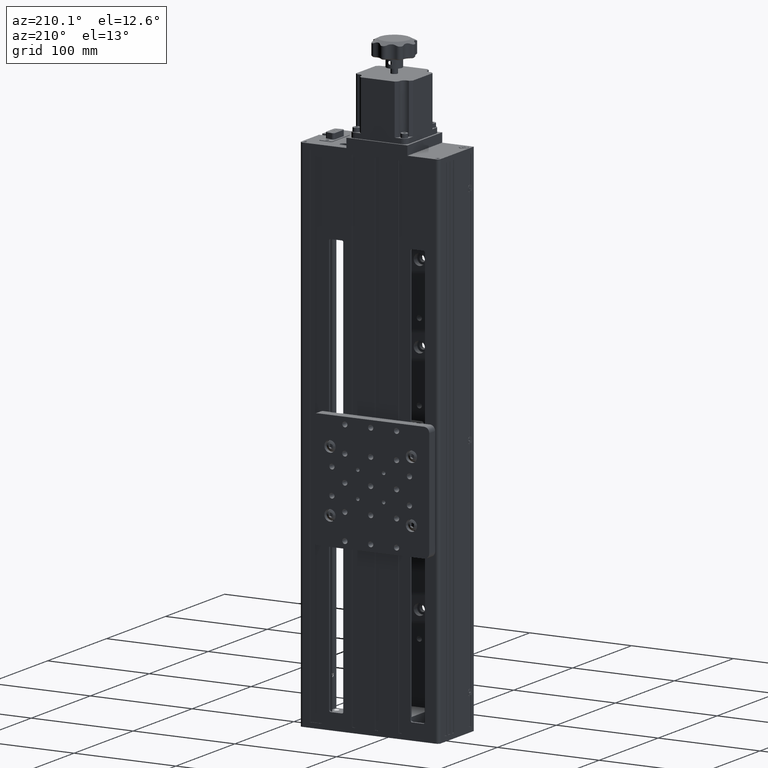
[diagram: clean part render]
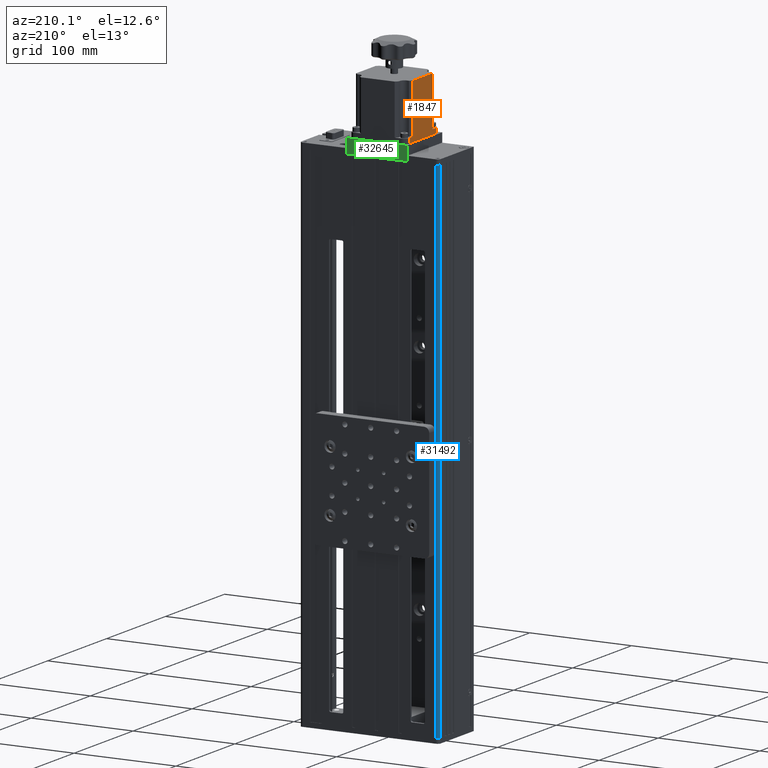
[diagram: same view with three faces highlighted in distinct colors, each labeled with its STEP entity id]
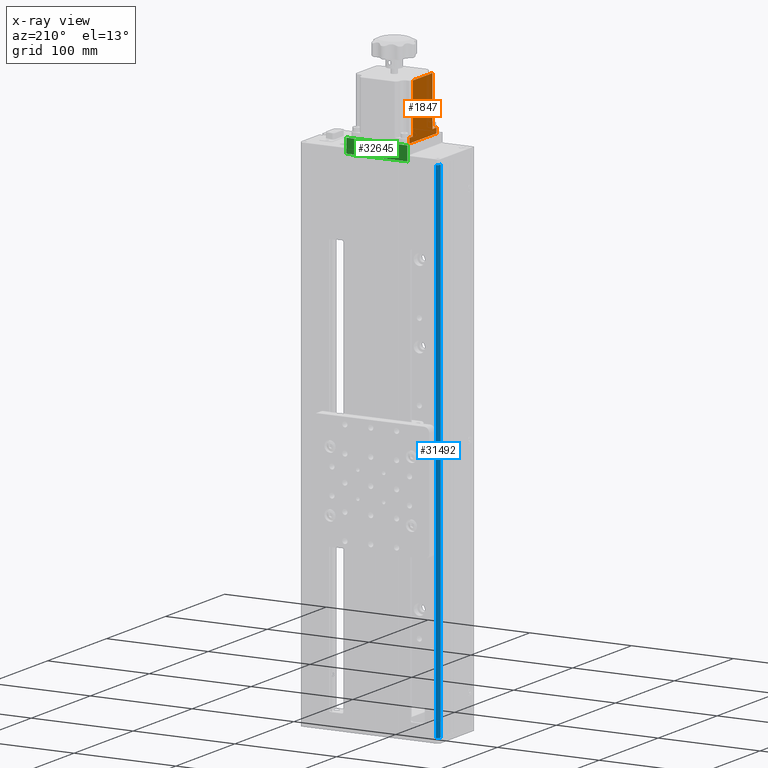
[diagram: x-ray of the same camera — body ghosted, the three highlighted faces saturated]
A machine part, auxiliary view with three faces highlighted in distinct colors.
The next image is the same camera in x-ray (body ghosted, the three faces saturated) — at least one of them is partly hidden behind the body in this view.
Their STEP definitions:

[orange] entity #1847 — the highlighted planar face has unit normal (1, -0, 0).
#254 = LINE ( 'NONE', #18395, #25292 ) ;
#491 = EDGE_CURVE ( 'NONE', #16602, #12348, #31742, .T. ) ;
#1010 = FACE_OUTER_BOUND ( 'NONE', #14990, .T. ) ;
#1242 = VECTOR ( 'NONE', #1416, 1000.000000000000000 ) ;
#1343 = VERTEX_POINT ( 'NONE', #29784 ) ;
#1416 = DIRECTION ( 'NONE',  ( -3.330669073875468600E-016, 1.000000000000000000, 0.0000000000000000000 ) ) ;
#1847 = ADVANCED_FACE ( 'NONE', ( #1010 ), #20207, .F. ) ;
#1956 = DIRECTION ( 'NONE',  ( 0.0000000000000000000, -0.0000000000000000000, -1.000000000000000000 ) ) ;
#3810 = LINE ( 'NONE', #28969, #37469 ) ;
#4369 = ORIENTED_EDGE ( 'NONE', *, *, #26815, .T. ) ;
#6013 = CARTESIAN_POINT ( 'NONE',  ( -38.61080835603996800, 4.012349379352013300, 268.5000000000000000 ) ) ;
#6045 = DIRECTION ( 'NONE',  ( -0.0000000000000000000, 0.0000000000000000000, 1.000000000000000000 ) ) ;
#7367 = VECTOR ( 'NONE', #34994, 1000.000000000000000 ) ;
#10013 = ORIENTED_EDGE ( 'NONE', *, *, #21688, .T. ) ;
#11603 = ORIENTED_EDGE ( 'NONE', *, *, #20942, .T. ) ;
#11646 = EDGE_CURVE ( 'NONE', #12348, #36449, #35927, .T. ) ;
#12348 = VERTEX_POINT ( 'NONE', #21946 ) ;
#12385 = VERTEX_POINT ( 'NONE', #38404 ) ;
#13292 = CARTESIAN_POINT ( 'NONE',  ( -38.61080835603998900, 48.58234937935204600, 268.5000000000000000 ) ) ;
#14990 = EDGE_LOOP ( 'NONE', ( #35791, #15434, #20850, #11603, #4369, #10013, #40715, #31013 ) ) ;
#15434 = ORIENTED_EDGE ( 'NONE', *, *, #30231, .T. ) ;
#15863 = VECTOR ( 'NONE', #23136, 1000.000000000000000 ) ;
#16602 = VERTEX_POINT ( 'NONE', #26169 ) ;
#17068 = CARTESIAN_POINT ( 'NONE',  ( -38.61080835603998900, 48.58234937935204600, 263.5000000000000000 ) ) ;
#17098 = LINE ( 'NONE', #35137, #7367 ) ;
#17704 = VECTOR ( 'NONE', #37075, 1000.000000000000000 ) ;
#18395 = CARTESIAN_POINT ( 'NONE',  ( -38.61080835603998900, 48.58234937935204600, 263.5000000000000000 ) ) ;
#18572 = VERTEX_POINT ( 'NONE', #38781 ) ;
#18872 = CARTESIAN_POINT ( 'NONE',  ( -38.61080835603998900, 37.15234937935203200, 317.3000000000000100 ) ) ;
#19084 = CARTESIAN_POINT ( 'NONE',  ( -38.61080835603996800, -2.417650620648005500, 263.5000000000000000 ) ) ;
#20207 = PLANE ( 'NONE',  #39391 ) ;
#20348 = DIRECTION ( 'NONE',  ( 0.0000000000000000000, 0.0000000000000000000, -1.000000000000000000 ) ) ;
#20850 = ORIENTED_EDGE ( 'NONE', *, *, #21256, .T. ) ;
#20942 = EDGE_CURVE ( 'NONE', #25604, #12385, #34997, .T. ) ;
#21256 = EDGE_CURVE ( 'NONE', #27428, #25604, #3810, .T. ) ;
#21637 = DIRECTION ( 'NONE',  ( -3.330669073875468600E-016, 1.000000000000000000, 0.0000000000000000000 ) ) ;
#21688 = EDGE_CURVE ( 'NONE', #18572, #1343, #31787, .T. ) ;
#21946 = CARTESIAN_POINT ( 'NONE',  ( -38.61080835603996800, -2.417650620648005500, 268.5000000000000000 ) ) ;
#23104 = VECTOR ( 'NONE', #6045, 1000.000000000000000 ) ;
#23136 = DIRECTION ( 'NONE',  ( -3.330669073875468600E-016, 1.000000000000000000, 0.0000000000000000000 ) ) ;
#24173 = VECTOR ( 'NONE', #1956, 1000.000000000000000 ) ;
#24518 = LINE ( 'NONE', #13292, #15863 ) ;
#25292 = VECTOR ( 'NONE', #21637, 1000.000000000000000 ) ;
#25604 = VERTEX_POINT ( 'NONE', #18872 ) ;
#26169 = CARTESIAN_POINT ( 'NONE',  ( -38.61080835603996800, -2.417650620648005500, 263.5000000000000000 ) ) ;
#26815 = EDGE_CURVE ( 'NONE', #12385, #18572, #24518, .T. ) ;
#27428 = VERTEX_POINT ( 'NONE', #29900 ) ;
#28969 = CARTESIAN_POINT ( 'NONE',  ( -38.61080835603998900, 48.58234937935204600, 317.3000000000000100 ) ) ;
#29784 = CARTESIAN_POINT ( 'NONE',  ( -38.61080835603998900, 43.58234937935201700, 263.5000000000000000 ) ) ;
#29900 = CARTESIAN_POINT ( 'NONE',  ( -38.61080835603996800, 4.012349379352013300, 317.3000000000000100 ) ) ;
#30231 = EDGE_CURVE ( 'NONE', #36449, #27428, #17098, .T. ) ;
#30780 = CARTESIAN_POINT ( 'NONE',  ( -38.61080835603998900, 48.58234937935204600, 268.5000000000000000 ) ) ;
#31013 = ORIENTED_EDGE ( 'NONE', *, *, #491, .T. ) ;
#31742 = LINE ( 'NONE', #19084, #23104 ) ;
#31787 = LINE ( 'NONE', #40999, #24173 ) ;
#33790 = CARTESIAN_POINT ( 'NONE',  ( -38.61080835603998900, 37.15234937935203200, 268.5000000000000000 ) ) ;
#34994 = DIRECTION ( 'NONE',  ( -0.0000000000000000000, 0.0000000000000000000, 1.000000000000000000 ) ) ;
#34997 = LINE ( 'NONE', #33790, #17704 ) ;
#35137 = CARTESIAN_POINT ( 'NONE',  ( -38.61080835603996800, 4.012349379352013300, 263.5000000000000000 ) ) ;
#35791 = ORIENTED_EDGE ( 'NONE', *, *, #11646, .T. ) ;
#35802 = EDGE_CURVE ( 'NONE', #16602, #1343, #254, .T. ) ;
#35927 = LINE ( 'NONE', #30780, #1242 ) ;
#36449 = VERTEX_POINT ( 'NONE', #6013 ) ;
#37075 = DIRECTION ( 'NONE',  ( 0.0000000000000000000, 0.0000000000000000000, -1.000000000000000000 ) ) ;
#37469 = VECTOR ( 'NONE', #41888, 1000.000000000000000 ) ;
#38404 = CARTESIAN_POINT ( 'NONE',  ( -38.61080835603998900, 37.15234937935203200, 268.5000000000000000 ) ) ;
#38781 = CARTESIAN_POINT ( 'NONE',  ( -38.61080835603998900, 43.58234937935201700, 268.5000000000000000 ) ) ;
#39391 = AXIS2_PLACEMENT_3D ( 'NONE', #17068, #39831, #20348 ) ;
#39831 = DIRECTION ( 'NONE',  ( 1.000000000000000000, -2.220446049250312600E-016, 0.0000000000000000000 ) ) ;
#40715 = ORIENTED_EDGE ( 'NONE', *, *, #35802, .F. ) ;
#40999 = CARTESIAN_POINT ( 'NONE',  ( -38.61080835603998900, 43.58234937935201700, 263.5000000000000000 ) ) ;
#41888 = DIRECTION ( 'NONE',  ( -3.330669073875468600E-016, 1.000000000000000000, 0.0000000000000000000 ) ) ;

[blue] entity #31492 — the highlighted cylindrical surface (edge-blend (fillet) strip) has radius 3 mm, axis along (-0, -0, -1).
#393 = LINE ( 'NONE', #2433, #33035 ) ;
#797 = VERTEX_POINT ( 'NONE', #1156 ) ;
#1156 = CARTESIAN_POINT ( 'NONE',  ( -68.61080835603992500, 50.08234937935211000, -249.5000000000000000 ) ) ;
#2433 = CARTESIAN_POINT ( 'NONE',  ( -68.61080835603992500, 50.08234937935211000, 249.5000000000000000 ) ) ;
#5698 = DIRECTION ( 'NONE',  ( -0.0000000000000000000, -0.0000000000000000000, -1.000000000000000000 ) ) ;
#6929 = EDGE_CURVE ( 'NONE', #8549, #797, #393, .T. ) ;
#7006 = AXIS2_PLACEMENT_3D ( 'NONE', #30793, #11305, #34079 ) ;
#8422 = ORIENTED_EDGE ( 'NONE', *, *, #17968, .F. ) ;
#8549 = VERTEX_POINT ( 'NONE', #12566 ) ;
#9353 = CARTESIAN_POINT ( 'NONE',  ( -71.61080835603992500, 47.08234937935211000, 249.5000000000000000 ) ) ;
#11305 = DIRECTION ( 'NONE',  ( 0.0000000000000000000, 0.0000000000000000000, 1.000000000000000000 ) ) ;
#12566 = CARTESIAN_POINT ( 'NONE',  ( -68.61080835603992500, 50.08234937935211000, 249.5000000000000000 ) ) ;
#14168 = CIRCLE ( 'NONE', #15311, 3.000000000000002700 ) ;
#14727 = DIRECTION ( 'NONE',  ( -1.000000000000000000, 0.0000000000000000000, 0.0000000000000000000 ) ) ;
#14996 = ORIENTED_EDGE ( 'NONE', *, *, #25374, .T. ) ;
#15121 = AXIS2_PLACEMENT_3D ( 'NONE', #34222, #37345, #14727 ) ;
#15311 = AXIS2_PLACEMENT_3D ( 'NONE', #19269, #41997, #22525 ) ;
#16540 = VERTEX_POINT ( 'NONE', #31995 ) ;
#17968 = EDGE_CURVE ( 'NONE', #41024, #16540, #29042, .T. ) ;
#19269 = CARTESIAN_POINT ( 'NONE',  ( -68.61080835603992500, 47.08234937935211000, 249.5000000000000000 ) ) ;
#22525 = DIRECTION ( 'NONE',  ( 1.000000000000000000, 0.0000000000000000000, 0.0000000000000000000 ) ) ;
#24581 = ORIENTED_EDGE ( 'NONE', *, *, #6929, .T. ) ;
#25374 = EDGE_CURVE ( 'NONE', #797, #16540, #30275, .T. ) ;
#27402 = ORIENTED_EDGE ( 'NONE', *, *, #35294, .F. ) ;
#28664 = CYLINDRICAL_SURFACE ( 'NONE', #15121, 3.000000000000002700 ) ;
#29042 = LINE ( 'NONE', #9353, #36643 ) ;
#30016 = EDGE_LOOP ( 'NONE', ( #14996, #8422, #27402, #24581 ) ) ;
#30275 = CIRCLE ( 'NONE', #7006, 3.000000000000002700 ) ;
#30793 = CARTESIAN_POINT ( 'NONE',  ( -68.61080835603992500, 47.08234937935211000, -249.5000000000000000 ) ) ;
#31492 = ADVANCED_FACE ( 'NONE', ( #41370 ), #28664, .T. ) ;
#31995 = CARTESIAN_POINT ( 'NONE',  ( -71.61080835603992500, 47.08234937935211000, -249.5000000000000000 ) ) ;
#33035 = VECTOR ( 'NONE', #5698, 1000.000000000000000 ) ;
#34079 = DIRECTION ( 'NONE',  ( 1.000000000000000000, 0.0000000000000000000, 0.0000000000000000000 ) ) ;
#34222 = CARTESIAN_POINT ( 'NONE',  ( -68.61080835603992500, 47.08234937935211000, 249.5000000000000000 ) ) ;
#35294 = EDGE_CURVE ( 'NONE', #8549, #41024, #14168, .T. ) ;
#35430 = DIRECTION ( 'NONE',  ( -0.0000000000000000000, -0.0000000000000000000, -1.000000000000000000 ) ) ;
#36643 = VECTOR ( 'NONE', #35430, 1000.000000000000000 ) ;
#37345 = DIRECTION ( 'NONE',  ( -0.0000000000000000000, -0.0000000000000000000, -1.000000000000000000 ) ) ;
#40075 = CARTESIAN_POINT ( 'NONE',  ( -71.61080835603992500, 47.08234937935211000, 249.5000000000000000 ) ) ;
#41024 = VERTEX_POINT ( 'NONE', #40075 ) ;
#41370 = FACE_OUTER_BOUND ( 'NONE', #30016, .T. ) ;
#41997 = DIRECTION ( 'NONE',  ( 0.0000000000000000000, 0.0000000000000000000, 1.000000000000000000 ) ) ;

[green] entity #32645 — the highlighted planar face has unit normal (0, 1, 0).
#1415 = VECTOR ( 'NONE', #3972, 1000.000000000000000 ) ;
#2093 = LINE ( 'NONE', #14416, #19465 ) ;
#2709 = VECTOR ( 'NONE', #4945, 1000.000000000000000 ) ;
#3972 = DIRECTION ( 'NONE',  ( -1.000000000000000000, -0.0000000000000000000, -0.0000000000000000000 ) ) ;
#4364 = EDGE_CURVE ( 'NONE', #38728, #22562, #2093, .T. ) ;
#4945 = DIRECTION ( 'NONE',  ( 0.0000000000000000000, 0.0000000000000000000, 1.000000000000000000 ) ) ;
#5635 = ORIENTED_EDGE ( 'NONE', *, *, #4364, .T. ) ;
#7026 = CARTESIAN_POINT ( 'NONE',  ( 19.38919164396005400, 50.08234937935199600, 263.5000000000000000 ) ) ;
#8520 = VECTOR ( 'NONE', #27794, 1000.000000000000000 ) ;
#11195 = DIRECTION ( 'NONE',  ( 0.0000000000000000000, 1.000000000000000000, 0.0000000000000000000 ) ) ;
#14416 = CARTESIAN_POINT ( 'NONE',  ( -40.61080835603994600, 50.08234937935199600, 249.5000000000000000 ) ) ;
#14581 = ORIENTED_EDGE ( 'NONE', *, *, #29681, .F. ) ;
#14607 = EDGE_LOOP ( 'NONE', ( #14581, #33415, #40226, #5635 ) ) ;
#15574 = VERTEX_POINT ( 'NONE', #33067 ) ;
#17967 = CARTESIAN_POINT ( 'NONE',  ( 19.38919164396005400, 50.08234937935199600, 249.5000000000000000 ) ) ;
#19465 = VECTOR ( 'NONE', #37178, 1000.000000000000000 ) ;
#20073 = EDGE_CURVE ( 'NONE', #15574, #24840, #37365, .T. ) ;
#22562 = VERTEX_POINT ( 'NONE', #26268 ) ;
#24507 = CARTESIAN_POINT ( 'NONE',  ( -40.61080835603994600, 50.08234937935199600, 263.5000000000000000 ) ) ;
#24840 = VERTEX_POINT ( 'NONE', #7026 ) ;
#26268 = CARTESIAN_POINT ( 'NONE',  ( -40.61080835603994600, 50.08234937935199600, 263.5000000000000000 ) ) ;
#26801 = CARTESIAN_POINT ( 'NONE',  ( -40.61080835603994600, 50.08234937935199600, 249.5000000000000000 ) ) ;
#27794 = DIRECTION ( 'NONE',  ( -1.000000000000000000, -0.0000000000000000000, -0.0000000000000000000 ) ) ;
#29681 = EDGE_CURVE ( 'NONE', #24840, #22562, #34534, .T. ) ;
#30702 = CARTESIAN_POINT ( 'NONE',  ( -40.61080835603994600, 50.08234937935199600, 249.5000000000000000 ) ) ;
#31872 = CARTESIAN_POINT ( 'NONE',  ( -40.61080835603994600, 50.08234937935199600, 249.5000000000000000 ) ) ;
#32645 = ADVANCED_FACE ( 'NONE', ( #40055 ), #33826, .T. ) ;
#33067 = CARTESIAN_POINT ( 'NONE',  ( 19.38919164396005400, 50.08234937935199600, 249.5000000000000000 ) ) ;
#33415 = ORIENTED_EDGE ( 'NONE', *, *, #20073, .F. ) ;
#33826 = PLANE ( 'NONE',  #40795 ) ;
#33971 = DIRECTION ( 'NONE',  ( 0.0000000000000000000, -0.0000000000000000000, 1.000000000000000000 ) ) ;
#34534 = LINE ( 'NONE', #24507, #8520 ) ;
#34910 = EDGE_CURVE ( 'NONE', #15574, #38728, #36082, .T. ) ;
#36082 = LINE ( 'NONE', #26801, #1415 ) ;
#37178 = DIRECTION ( 'NONE',  ( 0.0000000000000000000, 0.0000000000000000000, 1.000000000000000000 ) ) ;
#37365 = LINE ( 'NONE', #17967, #2709 ) ;
#38728 = VERTEX_POINT ( 'NONE', #31872 ) ;
#40055 = FACE_OUTER_BOUND ( 'NONE', #14607, .T. ) ;
#40226 = ORIENTED_EDGE ( 'NONE', *, *, #34910, .T. ) ;
#40795 = AXIS2_PLACEMENT_3D ( 'NONE', #30702, #11195, #33971 ) ;